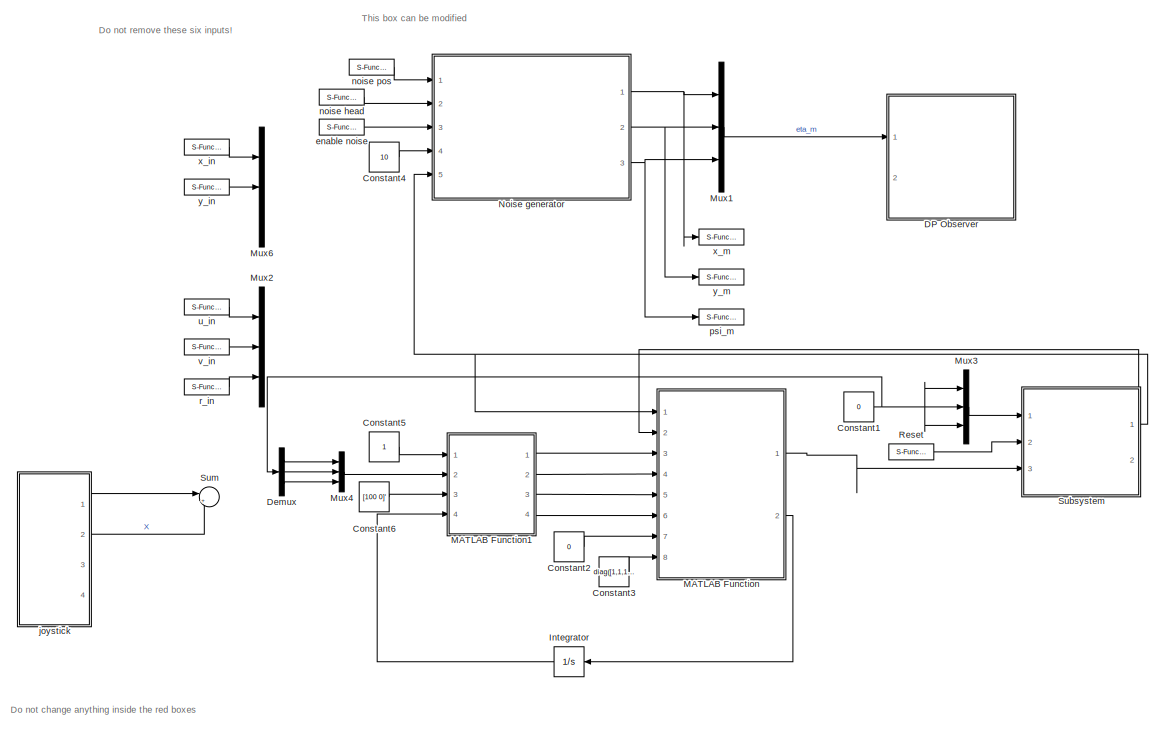
[diagram: root canvas - part 1/2, center side, full height]
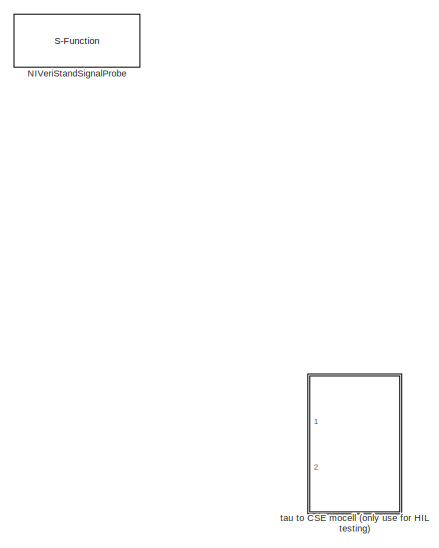
[diagram: root canvas - part 2/2, middle right region]
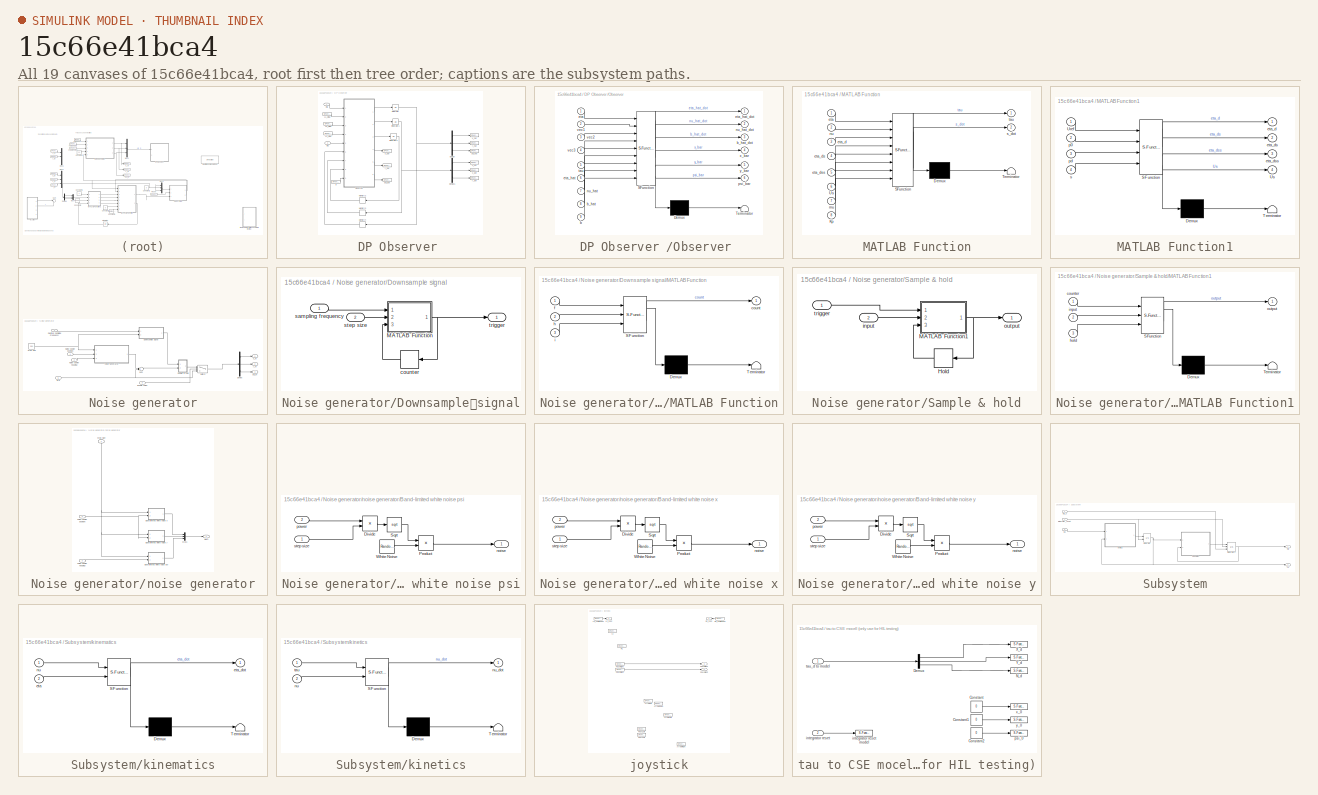
[diagram: thumbnail index - all 19 canvases of the model, root first then tree order]
MODEL slx_15c66e41bca4
KIND model
CONFIG AbsTol = auto
CONFIG FixedStep = 0.01
CONFIG MaxStep = auto
CONFIG MinStep = auto
CONFIG RelTol = 1e-3
CONFIG SampleTimeConstraint = Unconstrained
CONFIG Solver = ode4
CONFIG SolverMode = Auto
CONFIG SolverName = ode4
CONFIG StartTime = 0.0
CONFIG StopTime = inf
BLOCK [Constant] Constant1
  Value = 0
BLOCK [Constant] Constant2
  Value = 0
BLOCK [Constant] Constant3
  Value = diag([1,1,1])
BLOCK [Constant] Constant4
  Value = 10
BLOCK [Constant] Constant5
BLOCK [Constant] Constant6
  Value = [100 0]'
BLOCK [SubSystem] DP Observer 
  Ports = [2]
  RequestExecContextInheritance = off
BLOCK [Demux] DP Observer /Demux
  DisplayOption = bar
  Outputs = 3
  Ports = [1, 3]
BLOCK [Demux] DP Observer /Demux1
  DisplayOption = bar
  Outputs = 3
  Ports = [1, 3]
BLOCK [Integrator] DP Observer /Integrator
  Ports = [1, 1]
BLOCK [Integrator] DP Observer /Integrator1
  Ports = [1, 1]
BLOCK [Integrator] DP Observer /Integrator2
  Ports = [1, 1]
BLOCK [S-Function] DP Observer /L1_diag
  CopyFcn = NIVeriStand_MDL_functions('', 'IO_copy');
  DeleteFcn = NIVeriStand_MDL_functions('', 'IO_delete');
  FunctionName = NIVeriStandIO
  MoveFcn = set_param(gcb, 'Mask', 'on');
  Parameters = width dtype portnum stime stype btype
  Ports = [0, 1]
  Priority = 1
BLOCK [S-Function] DP Observer /L2_diag 
  CopyFcn = NIVeriStand_MDL_functions('', 'IO_copy');
  DeleteFcn = NIVeriStand_MDL_functions('', 'IO_delete');
  FunctionName = NIVeriStandIO
  MoveFcn = set_param(gcb, 'Mask', 'on');
  Parameters = width dtype portnum stime stype btype
  Ports = [0, 1]
  Priority = 2
BLOCK [S-Function] DP Observer /L3_diag
  CopyFcn = NIVeriStand_MDL_functions('', 'IO_copy');
  DeleteFcn = NIVeriStand_MDL_functions('', 'IO_delete');
  FunctionName = NIVeriStandIO
  MoveFcn = set_param(gcb, 'Mask', 'on');
  Parameters = width dtype portnum stime stype btype
  Ports = [0, 1]
  Priority = 3
BLOCK [Memory] DP Observer /Memory2
  X0 = [0;0;0]
BLOCK [Memory] DP Observer /Memory3
  X0 = [0;0;0]
BLOCK [Memory] DP Observer /Memory4
  X0 = [0;0;0]
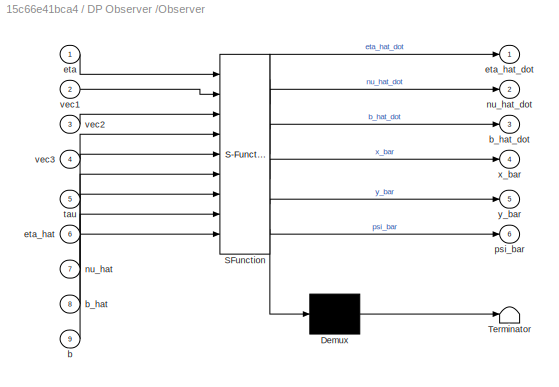
BLOCK [SubSystem] DP Observer /Observer 
  ErrorFcn = Stateflow.Translate.translate
  PermitHierarchicalResolution = ExplicitOnly
  Ports = [9, 6]
  RequestExecContextInheritance = off
  SFBlockType = MATLAB Function
  TreatAsAtomicUnit = on
BLOCK [Demux] DP Observer /Observer / Demux 
  Outputs = 1
  Ports = [1, 1]
BLOCK [S-Function] DP Observer /Observer / SFunction 
  EnableBusSupport = on
  FunctionName = sf_sfun
  PortCounts = [9 7]
  Ports = [9, 7]
  Tag = Stateflow S-Function ctrl_student_HIL_caseD 7
BLOCK [Terminator] DP Observer /Observer / Terminator 
BLOCK [Inport] DP Observer /Observer /b
  IconDisplay = Port number
  Port = 9
BLOCK [Inport] DP Observer /Observer /b_hat
  IconDisplay = Port number
  Port = 8
BLOCK [Outport] DP Observer /Observer /b_hat_dot
  IconDisplay = Port number
  Port = 3
BLOCK [Inport] DP Observer /Observer /eta
  IconDisplay = Port number
BLOCK [Inport] DP Observer /Observer /eta_hat
  IconDisplay = Port number
  Port = 6
BLOCK [Outport] DP Observer /Observer /eta_hat_dot
  IconDisplay = Port number
BLOCK [Inport] DP Observer /Observer /nu_hat
  IconDisplay = Port number
  Port = 7
BLOCK [Outport] DP Observer /Observer /nu_hat_dot
  IconDisplay = Port number
  Port = 2
BLOCK [Outport] DP Observer /Observer /psi_bar
  IconDisplay = Port number
  Port = 6
BLOCK [Inport] DP Observer /Observer /tau
  IconDisplay = Port number
  Port = 5
BLOCK [Inport] DP Observer /Observer /vec1
  IconDisplay = Port number
  Port = 2
BLOCK [Inport] DP Observer /Observer /vec2
  IconDisplay = Port number
  Port = 3
BLOCK [Inport] DP Observer /Observer /vec3
  IconDisplay = Port number
  Port = 4
BLOCK [Outport] DP Observer /Observer /x_bar
  IconDisplay = Port number
  Port = 4
BLOCK [Outport] DP Observer /Observer /y_bar
  IconDisplay = Port number
  Port = 5
BLOCK [S-Function] DP Observer /b
  CopyFcn = NIVeriStand_MDL_functions('', 'IO_copy');
  DeleteFcn = NIVeriStand_MDL_functions('', 'IO_delete');
  FunctionName = NIVeriStandIO
  MoveFcn = set_param(gcb, 'Mask', 'on');
  Parameters = width dtype portnum stime stype btype
  Ports = [0, 1]
  Priority = 4
BLOCK [Inport] DP Observer /eta 
  IconDisplay = Port number
BLOCK [S-Function] DP Observer /psi_bar
  CopyFcn = NIVeriStand_MDL_functions('', 'IO_copy');
  DeleteFcn = NIVeriStand_MDL_functions('', 'IO_delete');
  FunctionName = NIVeriStandIO
  MoveFcn = set_param(gcb, 'Mask', 'on');
  Parameters = width dtype portnum stime stype btype
  Ports = [1]
  Priority = 8
BLOCK [S-Function] DP Observer /psi_hat
  CopyFcn = NIVeriStand_MDL_functions('', 'IO_copy');
  DeleteFcn = NIVeriStand_MDL_functions('', 'IO_delete');
  FunctionName = NIVeriStandIO
  MoveFcn = set_param(gcb, 'Mask', 'on');
  Parameters = width dtype portnum stime stype btype
  Ports = [1]
  Priority = 2
BLOCK [S-Function] DP Observer /r_dot
  CopyFcn = NIVeriStand_MDL_functions('', 'IO_copy');
  DeleteFcn = NIVeriStand_MDL_functions('', 'IO_delete');
  FunctionName = NIVeriStandIO
  MoveFcn = set_param(gcb, 'Mask', 'on');
  Parameters = width dtype portnum stime stype btype
  Ports = [1]
  Priority = 4
BLOCK [Inport] DP Observer /tau 
  IconDisplay = Port number
  Port = 2
BLOCK [S-Function] DP Observer /u_dot
  CopyFcn = NIVeriStand_MDL_functions('', 'IO_copy');
  DeleteFcn = NIVeriStand_MDL_functions('', 'IO_delete');
  FunctionName = NIVeriStandIO
  MoveFcn = set_param(gcb, 'Mask', 'on');
  Parameters = width dtype portnum stime stype btype
  Ports = [1]
  Priority = 5
BLOCK [S-Function] DP Observer /v_dot
  CopyFcn = NIVeriStand_MDL_functions('', 'IO_copy');
  DeleteFcn = NIVeriStand_MDL_functions('', 'IO_delete');
  FunctionName = NIVeriStandIO
  MoveFcn = set_param(gcb, 'Mask', 'on');
  Parameters = width dtype portnum stime stype btype
  Ports = [1]
  Priority = 6
BLOCK [S-Function] DP Observer /x_bar
  CopyFcn = NIVeriStand_MDL_functions('', 'IO_copy');
  DeleteFcn = NIVeriStand_MDL_functions('', 'IO_delete');
  FunctionName = NIVeriStandIO
  MoveFcn = set_param(gcb, 'Mask', 'on');
  Parameters = width dtype portnum stime stype btype
  Ports = [1]
  Priority = 9
BLOCK [S-Function] DP Observer /x_hat
  CopyFcn = NIVeriStand_MDL_functions('', 'IO_copy');
  DeleteFcn = NIVeriStand_MDL_functions('', 'IO_delete');
  FunctionName = NIVeriStandIO
  MoveFcn = set_param(gcb, 'Mask', 'on');
  Parameters = width dtype portnum stime stype btype
  Ports = [1]
  Priority = 1
BLOCK [S-Function] DP Observer /y_bar
  CopyFcn = NIVeriStand_MDL_functions('', 'IO_copy');
  DeleteFcn = NIVeriStand_MDL_functions('', 'IO_delete');
  FunctionName = NIVeriStandIO
  MoveFcn = set_param(gcb, 'Mask', 'on');
  Parameters = width dtype portnum stime stype btype
  Ports = [1]
  Priority = 7
BLOCK [S-Function] DP Observer /y_hat
  CopyFcn = NIVeriStand_MDL_functions('', 'IO_copy');
  DeleteFcn = NIVeriStand_MDL_functions('', 'IO_delete');
  FunctionName = NIVeriStandIO
  MoveFcn = set_param(gcb, 'Mask', 'on');
  Parameters = width dtype portnum stime stype btype
  Ports = [1]
  Priority = 3
BLOCK [Demux] Demux
  DisplayOption = bar
  Outputs = 3
  Ports = [1, 3]
BLOCK [Integrator] Integrator
  Ports = [1, 1]
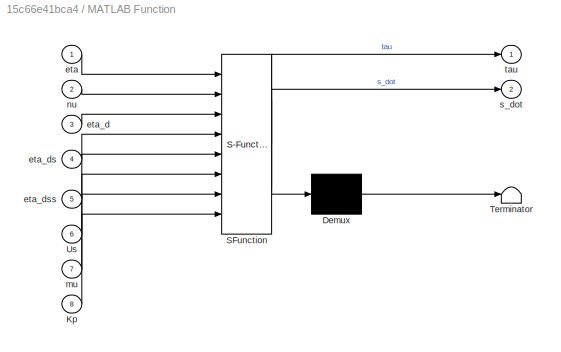
BLOCK [SubSystem] MATLAB Function
  ErrorFcn = Stateflow.Translate.translate
  PermitHierarchicalResolution = ExplicitOnly
  Ports = [8, 2]
  RequestExecContextInheritance = off
  SFBlockType = MATLAB Function
  TreatAsAtomicUnit = on
BLOCK [Demux] MATLAB Function/ Demux 
  Outputs = 1
  Ports = [1, 1]
BLOCK [S-Function] MATLAB Function/ SFunction 
  FunctionName = sf_sfun
  PortCounts = [8 3]
  Ports = [8, 3]
  Tag = Stateflow S-Function ctrl_student_HIL_caseD 2
BLOCK [Terminator] MATLAB Function/ Terminator 
BLOCK [Inport] MATLAB Function/Kp
  IconDisplay = Port number
  Port = 8
BLOCK [Inport] MATLAB Function/Us
  IconDisplay = Port number
  Port = 6
BLOCK [Inport] MATLAB Function/eta
  IconDisplay = Port number
BLOCK [Inport] MATLAB Function/eta_d
  IconDisplay = Port number
  Port = 3
BLOCK [Inport] MATLAB Function/eta_ds
  IconDisplay = Port number
  Port = 4
BLOCK [Inport] MATLAB Function/eta_dss
  IconDisplay = Port number
  Port = 5
BLOCK [Inport] MATLAB Function/mu
  IconDisplay = Port number
  Port = 7
BLOCK [Inport] MATLAB Function/nu
  IconDisplay = Port number
  Port = 2
BLOCK [Outport] MATLAB Function/s_dot
  IconDisplay = Port number
  Port = 2
BLOCK [Outport] MATLAB Function/tau
  IconDisplay = Port number
BLOCK [SubSystem] MATLAB Function1
  ErrorFcn = Stateflow.Translate.translate
  PermitHierarchicalResolution = ExplicitOnly
  Ports = [4, 4]
  RequestExecContextInheritance = off
  SFBlockType = MATLAB Function
  TreatAsAtomicUnit = on
BLOCK [Demux] MATLAB Function1/ Demux 
  Outputs = 1
  Ports = [1, 1]
BLOCK [S-Function] MATLAB Function1/ SFunction 
  FunctionName = sf_sfun
  PortCounts = [4 5]
  Ports = [4, 5]
  Tag = Stateflow S-Function ctrl_student_HIL_caseD 6
BLOCK [Terminator] MATLAB Function1/ Terminator 
BLOCK [Inport] MATLAB Function1/Uref
  IconDisplay = Port number
BLOCK [Outport] MATLAB Function1/Us
  IconDisplay = Port number
  Port = 4
BLOCK [Outport] MATLAB Function1/eta_d
  IconDisplay = Port number
BLOCK [Outport] MATLAB Function1/eta_ds
  IconDisplay = Port number
  Port = 2
BLOCK [Outport] MATLAB Function1/eta_dss
  IconDisplay = Port number
  Port = 3
BLOCK [Inport] MATLAB Function1/p0
  IconDisplay = Port number
  Port = 2
BLOCK [Inport] MATLAB Function1/pd
  IconDisplay = Port number
  Port = 3
BLOCK [Inport] MATLAB Function1/s
  IconDisplay = Port number
  Port = 4
BLOCK [Mux] Mux1
  DisplayOption = bar
  Inputs = 3
  Ports = [3, 1]
BLOCK [Mux] Mux2
  DisplayOption = bar
  Inputs = 3
  Ports = [3, 1]
BLOCK [Mux] Mux3
  DisplayOption = bar
  Inputs = 3
  Ports = [3, 1]
BLOCK [Mux] Mux4
  DisplayOption = bar
  Inputs = 3
  Ports = [3, 1]
BLOCK [Mux] Mux6
  DisplayOption = bar
  Inputs = 3
  Ports = [3, 1]
BLOCK [S-Function] NIVeriStandSignalProbe
  FunctionName = NIVeriStandSignalProbe
  Parameters = 1
  Ports = []
BLOCK [SubSystem] Noise generator
  Ports = [5, 3]
  RequestExecContextInheritance = off
BLOCK [Demux] Noise generator/Demux
  DisplayOption = bar
  Outputs = 3
  Ports = [1, 3]
BLOCK [Inport] Noise generator/Desiired Sampling Frequency
  IconDisplay = Port number
  Port = 4
BLOCK [SubSystem] Noise generator/Downsample	signal
  Ports = [2, 1]
  RequestExecContextInheritance = off
BLOCK [SubSystem] Noise generator/Downsample	signal/MATLAB Function
  ErrorFcn = Stateflow.Translate.translate
  PermitHierarchicalResolution = ExplicitOnly
  Ports = [3, 1]
  RequestExecContextInheritance = off
  SFBlockType = MATLAB Function
  TreatAsAtomicUnit = on
BLOCK [Demux] Noise generator/Downsample	signal/MATLAB Function/ Demux 
  Outputs = 1
  Ports = [1, 1]
BLOCK [S-Function] Noise generator/Downsample	signal/MATLAB Function/ SFunction 
  EnableBusSupport = on
  FunctionName = sf_sfun
  PortCounts = [3 2]
  Ports = [3, 2]
  Tag = Stateflow S-Function ctrl_student_HIL_caseD 3
BLOCK [Terminator] Noise generator/Downsample	signal/MATLAB Function/ Terminator 
BLOCK [Outport] Noise generator/Downsample	signal/MATLAB Function/count
  IconDisplay = Port number
BLOCK [Inport] Noise generator/Downsample	signal/MATLAB Function/f
  IconDisplay = Port number
BLOCK [Inport] Noise generator/Downsample	signal/MATLAB Function/h
  IconDisplay = Port number
  Port = 2
BLOCK [Inport] Noise generator/Downsample	signal/MATLAB Function/i
  IconDisplay = Port number
  Port = 3
BLOCK [Memory] Noise generator/Downsample	signal/counter
BLOCK [Inport] Noise generator/Downsample	signal/sampling frequency
  IconDisplay = Port number
BLOCK [Inport] Noise generator/Downsample	signal/step size
  IconDisplay = Port number
  Port = 2
BLOCK [Outport] Noise generator/Downsample	signal/trigger
  IconDisplay = Port number
BLOCK [Inport] Noise generator/Enable noise
  IconDisplay = Port number
  Port = 3
BLOCK [Inport] Noise generator/Noise power heading
  IconDisplay = Port number
  Port = 2
BLOCK [Inport] Noise generator/Noise power position
  IconDisplay = Port number
BLOCK [SubSystem] Noise generator/Sample & hold
  Ports = [2, 1]
  RequestExecContextInheritance = off
BLOCK [Memory] Noise generator/Sample & hold/Hold
BLOCK [SubSystem] Noise generator/Sample & hold/MATLAB Function1
  ErrorFcn = Stateflow.Translate.translate
  PermitHierarchicalResolution = ExplicitOnly
  Ports = [3, 1]
  RequestExecContextInheritance = off
  SFBlockType = MATLAB Function
  TreatAsAtomicUnit = on
BLOCK [Demux] Noise generator/Sample & hold/MATLAB Function1/ Demux 
  Outputs = 1
  Ports = [1, 1]
BLOCK [S-Function] Noise generator/Sample & hold/MATLAB Function1/ SFunction 
  EnableBusSupport = on
  FunctionName = sf_sfun
  PortCounts = [3 2]
  Ports = [3, 2]
  Tag = Stateflow S-Function ctrl_student_HIL_caseD 5
BLOCK [Terminator] Noise generator/Sample & hold/MATLAB Function1/ Terminator 
BLOCK [Inport] Noise generator/Sample & hold/MATLAB Function1/counter
  IconDisplay = Port number
BLOCK [Inport] Noise generator/Sample & hold/MATLAB Function1/hold
  IconDisplay = Port number
  Port = 3
BLOCK [Inport] Noise generator/Sample & hold/MATLAB Function1/input
  IconDisplay = Port number
  Port = 2
BLOCK [Outport] Noise generator/Sample & hold/MATLAB Function1/output
  IconDisplay = Port number
BLOCK [Inport] Noise generator/Sample & hold/input
  IconDisplay = Port number
  Port = 2
BLOCK [Outport] Noise generator/Sample & hold/output
  IconDisplay = Port number
BLOCK [Inport] Noise generator/Sample & hold/trigger
  IconDisplay = Port number
BLOCK [Constant] Noise generator/Step size
  Value = 0.01
BLOCK [Sum] Noise generator/Sum
  InputSameDT = off
  OutDataTypeStr = Inherit: Inherit via internal rule
  Ports = [2, 1]
  SaturateOnIntegerOverflow = off
BLOCK [Switch] Noise generator/Switch
  Criteria = u2 ~= 0
  InputSameDT = off
  SaturateOnIntegerOverflow = off
BLOCK [Inport] Noise generator/eta
  IconDisplay = Port number
  Port = 5
BLOCK [SubSystem] Noise generator/noise generator
  Ports = [3, 1]
  RequestExecContextInheritance = off
BLOCK [SubSystem] Noise generator/noise generator/Band-limited white noise psi
  Ports = [2, 1]
  RequestExecContextInheritance = off
BLOCK [Product] Noise generator/noise generator/Band-limited white noise psi/Divide
  InputSameDT = off
  Inputs = */
  OutDataTypeStr = Inherit: Inherit via internal rule
  Ports = [2, 1]
  RndMeth = Floor
  SaturateOnIntegerOverflow = off
BLOCK [Product] Noise generator/noise generator/Band-limited white noise psi/Product
  InputSameDT = off
  OutDataTypeStr = Inherit: Inherit via internal rule
  Ports = [2, 1]
  RndMeth = Floor
  SaturateOnIntegerOverflow = off
BLOCK [Sqrt] Noise generator/noise generator/Band-limited white noise psi/Sqrt
BLOCK [RandomNumber] Noise generator/noise generator/Band-limited white noise psi/White Noise
  DisableCoverage = on
  Seed = 9025
BLOCK [Outport] Noise generator/noise generator/Band-limited white noise psi/noise
  IconDisplay = Port number
BLOCK [Inport] Noise generator/noise generator/Band-limited white noise psi/power
  IconDisplay = Port number
  Port = 2
BLOCK [Inport] Noise generator/noise generator/Band-limited white noise psi/step size
  IconDisplay = Port number
BLOCK [SubSystem] Noise generator/noise generator/Band-limited white noise x
  Ports = [2, 1]
  RequestExecContextInheritance = off
BLOCK [Product] Noise generator/noise generator/Band-limited white noise x/Divide
  InputSameDT = off
  Inputs = */
  OutDataTypeStr = Inherit: Inherit via internal rule
  Ports = [2, 1]
  RndMeth = Floor
  SaturateOnIntegerOverflow = off
BLOCK [Product] Noise generator/noise generator/Band-limited white noise x/Product
  InputSameDT = off
  OutDataTypeStr = Inherit: Inherit via internal rule
  Ports = [2, 1]
  RndMeth = Floor
  SaturateOnIntegerOverflow = off
BLOCK [Sqrt] Noise generator/noise generator/Band-limited white noise x/Sqrt
BLOCK [RandomNumber] Noise generator/noise generator/Band-limited white noise x/White Noise
  DisableCoverage = on
  Seed = 9024
BLOCK [Outport] Noise generator/noise generator/Band-limited white noise x/noise
  IconDisplay = Port number
BLOCK [Inport] Noise generator/noise generator/Band-limited white noise x/power
  IconDisplay = Port number
  Port = 2
BLOCK [Inport] Noise generator/noise generator/Band-limited white noise x/step size
  IconDisplay = Port number
BLOCK [SubSystem] Noise generator/noise generator/Band-limited white noise y
  Ports = [2, 1]
  RequestExecContextInheritance = off
BLOCK [Product] Noise generator/noise generator/Band-limited white noise y/Divide
  InputSameDT = off
  Inputs = */
  OutDataTypeStr = Inherit: Inherit via internal rule
  Ports = [2, 1]
  RndMeth = Floor
  SaturateOnIntegerOverflow = off
BLOCK [Product] Noise generator/noise generator/Band-limited white noise y/Product
  InputSameDT = off
  OutDataTypeStr = Inherit: Inherit via internal rule
  Ports = [2, 1]
  RndMeth = Floor
  SaturateOnIntegerOverflow = off
BLOCK [Sqrt] Noise generator/noise generator/Band-limited white noise y/Sqrt
BLOCK [RandomNumber] Noise generator/noise generator/Band-limited white noise y/White Noise
  DisableCoverage = on
  Seed = 123
BLOCK [Outport] Noise generator/noise generator/Band-limited white noise y/noise
  IconDisplay = Port number
BLOCK [Inport] Noise generator/noise generator/Band-limited white noise y/power
  IconDisplay = Port number
  Port = 2
BLOCK [Inport] Noise generator/noise generator/Band-limited white noise y/step size
  IconDisplay = Port number
BLOCK [Mux] Noise generator/noise generator/Mux1
  DisplayOption = bar
  Inputs = 3
  Ports = [3, 1]
BLOCK [Outport] Noise generator/noise generator/Out1
  IconDisplay = Port number
BLOCK [Inport] Noise generator/noise generator/noise power heading
  IconDisplay = Port number
  Port = 3
BLOCK [Inport] Noise generator/noise generator/noise power position
  IconDisplay = Port number
  Port = 2
BLOCK [Inport] Noise generator/noise generator/step size
  IconDisplay = Port number
BLOCK [Outport] Noise generator/psi_m
  IconDisplay = Port number
  Port = 3
BLOCK [Outport] Noise generator/x_m
  IconDisplay = Port number
BLOCK [Outport] Noise generator/y_m
  IconDisplay = Port number
  Port = 2
BLOCK [S-Function] Reset
  CopyFcn = NIVeriStand_MDL_functions('', 'IO_copy');
  DeleteFcn = NIVeriStand_MDL_functions('', 'IO_delete');
  FunctionName = NIVeriStandIO
  MoveFcn = set_param(gcb, 'Mask', 'on');
  Parameters = width dtype portnum stime stype btype
  Ports = [0, 1]
  Priority = 9
BLOCK [SubSystem] Subsystem
  Ports = [3, 2]
  RequestExecContextInheritance = off
BLOCK [Integrator] Subsystem/Integrator
  ExternalReset = rising
  InitialCondition = [0 0 0]'
  Ports = [2, 1]
BLOCK [Integrator] Subsystem/Integrator1
  ExternalReset = rising
  InitialCondition = [0 0 0]'
  InitialConditionSource = external
  Ports = [3, 1]
BLOCK [Outport] Subsystem/eta
  IconDisplay = Port number
BLOCK [Inport] Subsystem/eta_0
  IconDisplay = Port number
BLOCK [Inport] Subsystem/integrator_reset
  IconDisplay = Port number
  Port = 2
BLOCK [SubSystem] Subsystem/kinematics
  ErrorFcn = Stateflow.Translate.translate
  PermitHierarchicalResolution = ExplicitOnly
  Ports = [2, 1]
  RequestExecContextInheritance = off
  SFBlockType = MATLAB Function
  TreatAsAtomicUnit = on
BLOCK [Demux] Subsystem/kinematics/ Demux 
  Outputs = 1
  Ports = [1, 1]
BLOCK [S-Function] Subsystem/kinematics/ SFunction 
  EnableBusSupport = on
  FunctionName = sf_sfun
  PortCounts = [2 2]
  Ports = [2, 2]
  Tag = Stateflow S-Function ctrl_student_HIL_caseD 1
BLOCK [Terminator] Subsystem/kinematics/ Terminator 
BLOCK [Inport] Subsystem/kinematics/eta
  IconDisplay = Port number
  Port = 2
BLOCK [Outport] Subsystem/kinematics/eta_dot
  IconDisplay = Port number
BLOCK [Inport] Subsystem/kinematics/nu
  IconDisplay = Port number
BLOCK [SubSystem] Subsystem/kinetics
  ErrorFcn = Stateflow.Translate.translate
  PermitHierarchicalResolution = ExplicitOnly
  Ports = [2, 1]
  RequestExecContextInheritance = off
  SFBlockType = MATLAB Function
  TreatAsAtomicUnit = on
BLOCK [Demux] Subsystem/kinetics/ Demux 
  Outputs = 1
  Ports = [1, 1]
BLOCK [S-Function] Subsystem/kinetics/ SFunction 
  EnableBusSupport = on
  FunctionName = sf_sfun
  PortCounts = [2 2]
  Ports = [2, 2]
  Tag = Stateflow S-Function ctrl_student_HIL_caseD 4
BLOCK [Terminator] Subsystem/kinetics/ Terminator 
BLOCK [Inport] Subsystem/kinetics/nu
  IconDisplay = Port number
  Port = 2
BLOCK [Outport] Subsystem/kinetics/nu_dot
  IconDisplay = Port number
BLOCK [Inport] Subsystem/kinetics/tau
  IconDisplay = Port number
BLOCK [Outport] Subsystem/nu
  IconDisplay = Port number
  Port = 2
BLOCK [Inport] Subsystem/tau
  IconDisplay = Port number
  Port = 3
BLOCK [Sum] Sum
  IconShape = round
  InputSameDT = off
  Inputs = |+-
  OutDataTypeStr = Inherit: Inherit via internal rule
  Ports = [2, 1]
  SaturateOnIntegerOverflow = off
BLOCK [S-Function] enable noise
  CopyFcn = NIVeriStand_MDL_functions('', 'IO_copy');
  DeleteFcn = NIVeriStand_MDL_functions('', 'IO_delete');
  FunctionName = NIVeriStandIO
  MoveFcn = set_param(gcb, 'Mask', 'on');
  Parameters = width dtype portnum stime stype btype
  Ports = [0, 1]
  Priority = 6
BLOCK [SubSystem] joystick
  Ports = [0, 4]
  RequestExecContextInheritance = off
BLOCK [S-Function] joystick/ArrowDown
  CopyFcn = NIVeriStand_MDL_functions('', 'IO_copy');
  DeleteFcn = NIVeriStand_MDL_functions('', 'IO_delete');
  FunctionName = NIVeriStandIO
  MoveFcn = set_param(gcb, 'Mask', 'on');
  Parameters = width dtype portnum stime stype btype
  Ports = [0, 1]
  Priority = 9
BLOCK [S-Function] joystick/ArrowLeft
  CopyFcn = NIVeriStand_MDL_functions('', 'IO_copy');
  DeleteFcn = NIVeriStand_MDL_functions('', 'IO_delete');
  FunctionName = NIVeriStandIO
  MoveFcn = set_param(gcb, 'Mask', 'on');
  Parameters = width dtype portnum stime stype btype
  Ports = [0, 1]
  Priority = 11
BLOCK [S-Function] joystick/ArrowRight
  CopyFcn = NIVeriStand_MDL_functions('', 'IO_copy');
  DeleteFcn = NIVeriStand_MDL_functions('', 'IO_delete');
  FunctionName = NIVeriStandIO
  MoveFcn = set_param(gcb, 'Mask', 'on');
  Parameters = width dtype portnum stime stype btype
  Ports = [0, 1]
  Priority = 12
BLOCK [S-Function] joystick/ArrowUp
  CopyFcn = NIVeriStand_MDL_functions('', 'IO_copy');
  DeleteFcn = NIVeriStand_MDL_functions('', 'IO_delete');
  FunctionName = NIVeriStandIO
  MoveFcn = set_param(gcb, 'Mask', 'on');
  Parameters = width dtype portnum stime stype btype
  Ports = [0, 1]
  Priority = 10
BLOCK [S-Function] joystick/L1
  CopyFcn = NIVeriStand_MDL_functions('', 'IO_copy');
  DeleteFcn = NIVeriStand_MDL_functions('', 'IO_delete');
  FunctionName = NIVeriStandIO
  MoveFcn = set_param(gcb, 'Mask', 'on');
  Parameters = width dtype portnum stime stype btype
  Ports = [0, 1]
  Priority = 7
BLOCK [Outport] joystick/L2_cont
  IconDisplay = Port number
BLOCK [S-Function] joystick/L2_continuous
  CopyFcn = NIVeriStand_MDL_functions('', 'IO_copy');
  DeleteFcn = NIVeriStand_MDL_functions('', 'IO_delete');
  FunctionName = NIVeriStandIO
  MoveFcn = set_param(gcb, 'Mask', 'on');
  Parameters = width dtype portnum stime stype btype
  Ports = [0, 1]
  Priority = 1
BLOCK [Outport] joystick/PosX Right
  IconDisplay = Port number
  Port = 3
BLOCK [S-Function] joystick/PosXLeft
  CopyFcn = NIVeriStand_MDL_functions('', 'IO_copy');
  DeleteFcn = NIVeriStand_MDL_functions('', 'IO_delete');
  FunctionName = NIVeriStandIO
  MoveFcn = set_param(gcb, 'Mask', 'on');
  Parameters = width dtype portnum stime stype btype
  Ports = [0, 1]
  Priority = 5
BLOCK [S-Function] joystick/PosXRight
  CopyFcn = NIVeriStand_MDL_functions('', 'IO_copy');
  DeleteFcn = NIVeriStand_MDL_functions('', 'IO_delete');
  FunctionName = NIVeriStandIO
  MoveFcn = set_param(gcb, 'Mask', 'on');
  Parameters = width dtype portnum stime stype btype
  Ports = [0, 1]
  Priority = 2
BLOCK [Outport] joystick/PosY Right
  IconDisplay = Port number
  Port = 4
BLOCK [S-Function] joystick/PosYLeft
  CopyFcn = NIVeriStand_MDL_functions('', 'IO_copy');
  DeleteFcn = NIVeriStand_MDL_functions('', 'IO_delete');
  FunctionName = NIVeriStandIO
  MoveFcn = set_param(gcb, 'Mask', 'on');
  Parameters = width dtype portnum stime stype btype
  Ports = [0, 1]
  Priority = 6
BLOCK [S-Function] joystick/PosYRight
  CopyFcn = NIVeriStand_MDL_functions('', 'IO_copy');
  DeleteFcn = NIVeriStand_MDL_functions('', 'IO_delete');
  FunctionName = NIVeriStandIO
  MoveFcn = set_param(gcb, 'Mask', 'on');
  Parameters = width dtype portnum stime stype btype
  Ports = [0, 1]
  Priority = 3
BLOCK [S-Function] joystick/R1
  CopyFcn = NIVeriStand_MDL_functions('', 'IO_copy');
  DeleteFcn = NIVeriStand_MDL_functions('', 'IO_delete');
  FunctionName = NIVeriStandIO
  MoveFcn = set_param(gcb, 'Mask', 'on');
  Parameters = width dtype portnum stime stype btype
  Ports = [0, 1]
  Priority = 8
BLOCK [Outport] joystick/R2_cont
  IconDisplay = Port number
  Port = 2
BLOCK [S-Function] joystick/R2_continuous
  CopyFcn = NIVeriStand_MDL_functions('', 'IO_copy');
  DeleteFcn = NIVeriStand_MDL_functions('', 'IO_delete');
  FunctionName = NIVeriStandIO
  MoveFcn = set_param(gcb, 'Mask', 'on');
  Parameters = width dtype portnum stime stype btype
  Ports = [0, 1]
  Priority = 4
BLOCK [S-Function] noise head
  CopyFcn = NIVeriStand_MDL_functions('', 'IO_copy');
  DeleteFcn = NIVeriStand_MDL_functions('', 'IO_delete');
  FunctionName = NIVeriStandIO
  MoveFcn = set_param(gcb, 'Mask', 'on');
  Parameters = width dtype portnum stime stype btype
  Ports = [0, 1]
  Priority = 8
BLOCK [S-Function] noise pos
  CopyFcn = NIVeriStand_MDL_functions('', 'IO_copy');
  DeleteFcn = NIVeriStand_MDL_functions('', 'IO_delete');
  FunctionName = NIVeriStandIO
  MoveFcn = set_param(gcb, 'Mask', 'on');
  Parameters = width dtype portnum stime stype btype
  Ports = [0, 1]
  Priority = 7
BLOCK [S-Function] psi_m
  CopyFcn = NIVeriStand_MDL_functions('', 'IO_copy');
  DeleteFcn = NIVeriStand_MDL_functions('', 'IO_delete');
  FunctionName = NIVeriStandIO
  MoveFcn = set_param(gcb, 'Mask', 'on');
  Parameters = width dtype portnum stime stype btype
  Ports = [1]
  Priority = 2
BLOCK [S-Function] r_in
  CopyFcn = NIVeriStand_MDL_functions('', 'IO_copy');
  DeleteFcn = NIVeriStand_MDL_functions('', 'IO_delete');
  FunctionName = NIVeriStandIO
  MoveFcn = set_param(gcb, 'Mask', 'on');
  Parameters = width dtype portnum stime stype btype
  Ports = [0, 1]
  Priority = 3
BLOCK [SubSystem] tau to CSE mocell (only use for HIL testing)
  Ports = [2]
  RequestExecContextInheritance = off
BLOCK [Constant] tau to CSE mocell (only use for HIL testing)/Constant
  Value = 0
BLOCK [Constant] tau to CSE mocell (only use for HIL testing)/Constant1
  Value = 0
BLOCK [Constant] tau to CSE mocell (only use for HIL testing)/Constant2
  Value = 0
BLOCK [Demux] tau to CSE mocell (only use for HIL testing)/Demux
  DisplayOption = bar
  Outputs = 3
  Ports = [1, 3]
BLOCK [S-Function] tau to CSE mocell (only use for HIL testing)/N_d
  CopyFcn = NIVeriStand_MDL_functions('', 'IO_copy');
  DeleteFcn = NIVeriStand_MDL_functions('', 'IO_delete');
  FunctionName = NIVeriStandIO
  MoveFcn = set_param(gcb, 'Mask', 'on');
  Parameters = width dtype portnum stime stype btype
  Ports = [1]
  Priority = 2
BLOCK [S-Function] tau to CSE mocell (only use for HIL testing)/X_d
  CopyFcn = NIVeriStand_MDL_functions('', 'IO_copy');
  DeleteFcn = NIVeriStand_MDL_functions('', 'IO_delete');
  FunctionName = NIVeriStandIO
  MoveFcn = set_param(gcb, 'Mask', 'on');
  Parameters = width dtype portnum stime stype btype
  Ports = [1]
  Priority = 1
BLOCK [S-Function] tau to CSE mocell (only use for HIL testing)/Y_d
  CopyFcn = NIVeriStand_MDL_functions('', 'IO_copy');
  DeleteFcn = NIVeriStand_MDL_functions('', 'IO_delete');
  FunctionName = NIVeriStandIO
  MoveFcn = set_param(gcb, 'Mask', 'on');
  Parameters = width dtype portnum stime stype btype
  Ports = [1]
  Priority = 3
BLOCK [Inport] tau to CSE mocell (only use for HIL testing)/integrator reset
  IconDisplay = Port number
  Port = 2
BLOCK [S-Function] tau to CSE mocell (only use for HIL testing)/integrator reset model
  CopyFcn = NIVeriStand_MDL_functions('', 'IO_copy');
  DeleteFcn = NIVeriStand_MDL_functions('', 'IO_delete');
  FunctionName = NIVeriStandIO
  MoveFcn = set_param(gcb, 'Mask', 'on');
  Parameters = width dtype portnum stime stype btype
  Ports = [1]
  Priority = 7
BLOCK [S-Function] tau to CSE mocell (only use for HIL testing)/psi_0 
  CopyFcn = NIVeriStand_MDL_functions('', 'IO_copy');
  DeleteFcn = NIVeriStand_MDL_functions('', 'IO_delete');
  FunctionName = NIVeriStandIO
  MoveFcn = set_param(gcb, 'Mask', 'on');
  Parameters = width dtype portnum stime stype btype
  Ports = [1]
  Priority = 4
BLOCK [Inport] tau to CSE mocell (only use for HIL testing)/tau_d to model
  IconDisplay = Port number
BLOCK [S-Function] tau to CSE mocell (only use for HIL testing)/x_0
  CopyFcn = NIVeriStand_MDL_functions('', 'IO_copy');
  DeleteFcn = NIVeriStand_MDL_functions('', 'IO_delete');
  FunctionName = NIVeriStandIO
  MoveFcn = set_param(gcb, 'Mask', 'on');
  Parameters = width dtype portnum stime stype btype
  Ports = [1]
  Priority = 5
BLOCK [S-Function] tau to CSE mocell (only use for HIL testing)/y_0
  CopyFcn = NIVeriStand_MDL_functions('', 'IO_copy');
  DeleteFcn = NIVeriStand_MDL_functions('', 'IO_delete');
  FunctionName = NIVeriStandIO
  MoveFcn = set_param(gcb, 'Mask', 'on');
  Parameters = width dtype portnum stime stype btype
  Ports = [1]
  Priority = 6
BLOCK [S-Function] u_in
  CopyFcn = NIVeriStand_MDL_functions('', 'IO_copy');
  DeleteFcn = NIVeriStand_MDL_functions('', 'IO_delete');
  FunctionName = NIVeriStandIO
  MoveFcn = set_param(gcb, 'Mask', 'on');
  Parameters = width dtype portnum stime stype btype
  Ports = [0, 1]
  Priority = 4
BLOCK [S-Function] v_in
  CopyFcn = NIVeriStand_MDL_functions('', 'IO_copy');
  DeleteFcn = NIVeriStand_MDL_functions('', 'IO_delete');
  FunctionName = NIVeriStandIO
  MoveFcn = set_param(gcb, 'Mask', 'on');
  Parameters = width dtype portnum stime stype btype
  Ports = [0, 1]
  Priority = 5
BLOCK [S-Function] x_in
  CopyFcn = NIVeriStand_MDL_functions('', 'IO_copy');
  DeleteFcn = NIVeriStand_MDL_functions('', 'IO_delete');
  FunctionName = NIVeriStandIO
  MoveFcn = set_param(gcb, 'Mask', 'on');
  Parameters = width dtype portnum stime stype btype
  Ports = [0, 1]
  Priority = 2
BLOCK [S-Function] x_m
  CopyFcn = NIVeriStand_MDL_functions('', 'IO_copy');
  DeleteFcn = NIVeriStand_MDL_functions('', 'IO_delete');
  FunctionName = NIVeriStandIO
  MoveFcn = set_param(gcb, 'Mask', 'on');
  Parameters = width dtype portnum stime stype btype
  Ports = [1]
  Priority = 1
BLOCK [S-Function] y_in
  CopyFcn = NIVeriStand_MDL_functions('', 'IO_copy');
  DeleteFcn = NIVeriStand_MDL_functions('', 'IO_delete');
  FunctionName = NIVeriStandIO
  MoveFcn = set_param(gcb, 'Mask', 'on');
  Parameters = width dtype portnum stime stype btype
  Ports = [0, 1]
  Priority = 1
BLOCK [S-Function] y_m
  CopyFcn = NIVeriStand_MDL_functions('', 'IO_copy');
  DeleteFcn = NIVeriStand_MDL_functions('', 'IO_delete');
  FunctionName = NIVeriStandIO
  MoveFcn = set_param(gcb, 'Mask', 'on');
  Parameters = width dtype portnum stime stype btype
  Ports = [1]
  Priority = 3
ANNOTATION (root): This box can be modified
ANNOTATION (root): Do not change anything inside the red boxes
ANNOTATION (root): Do not remove these six inputs!
NET Constant1:1 -> Demux:1, Mux3:1, Mux3:2, Mux3:3
LINE Constant2:1 -> MATLAB Function:7
LINE Constant3:1 -> MATLAB Function:8
LINE Constant4:1 -> Noise generator:4
LINE Constant5:1 -> MATLAB Function1:1
LINE Constant6:1 -> MATLAB Function1:3
LINE DP Observer /Demux1:1 -> DP Observer /u_dot:1
LINE DP Observer /Demux1:2 -> DP Observer /v_dot:1
LINE DP Observer /Demux1:3 -> DP Observer /r_dot:1
LINE DP Observer /Demux:1 -> DP Observer /x_hat:1
LINE DP Observer /Demux:2 -> DP Observer /y_hat:1
LINE DP Observer /Demux:3 -> DP Observer /psi_hat:1
NET DP Observer /Integrator1:1 -> DP Observer /Demux1:1, DP Observer /Memory3:1
LINE DP Observer /Integrator2:1 -> DP Observer /Memory2:1
NET DP Observer /Integrator:1 -> DP Observer /Demux:1, DP Observer /Memory4:1
LINE DP Observer /L1_diag:1 -> DP Observer /Observer :2
LINE DP Observer /L2_diag :1 -> DP Observer /Observer :3
LINE DP Observer /L3_diag:1 -> DP Observer /Observer :4
LINE DP Observer /Memory2:1 -> DP Observer /Observer :8
LINE DP Observer /Memory3:1 -> DP Observer /Observer :7
LINE DP Observer /Memory4:1 -> DP Observer /Observer :6
LINE DP Observer /Observer :1 -> DP Observer /Integrator:1
LINE DP Observer /Observer :2 -> DP Observer /Integrator1:1
LINE DP Observer /Observer :3 -> DP Observer /Integrator2:1
LINE DP Observer /Observer :4 -> DP Observer /x_bar:1
LINE DP Observer /Observer :5 -> DP Observer /y_bar:1
LINE DP Observer /Observer :6 -> DP Observer /psi_bar:1
LINE DP Observer /b:1 -> DP Observer /Observer :9
LINE DP Observer /eta :1 -> DP Observer /Observer :1
LINE DP Observer /tau :1 -> DP Observer /Observer :5
LINE Demux:1 -> Mux4:1
LINE Demux:2 -> Mux4:2
LINE Demux:3 -> Mux4:3
LINE Integrator:1 -> MATLAB Function1:4
LINE MATLAB Function1:1 -> MATLAB Function:3
LINE MATLAB Function1:2 -> MATLAB Function:4
LINE MATLAB Function1:3 -> MATLAB Function:5
LINE MATLAB Function1:4 -> MATLAB Function:6
LINE MATLAB Function:1 -> Subsystem:3
LINE MATLAB Function:2 -> Integrator:1
LINE Mux1:1 -> DP Observer :1
LINE Mux3:1 -> Subsystem:1
LINE Mux4:1 -> MATLAB Function1:2
LINE Noise generator/Demux:1 -> Noise generator/x_m:1
LINE Noise generator/Demux:2 -> Noise generator/y_m:1
LINE Noise generator/Demux:3 -> Noise generator/psi_m:1
LINE Noise generator/Desiired Sampling Frequency:1 -> Noise generator/Downsample	signal:1
NET Noise generator/Downsample	signal/MATLAB Function:1 -> Noise generator/Downsample	signal/counter:1, Noise generator/Downsample	signal/trigger:1
LINE Noise generator/Downsample	signal/counter:1 -> Noise generator/Downsample	signal/MATLAB Function:3
LINE Noise generator/Downsample	signal/sampling frequency:1 -> Noise generator/Downsample	signal/MATLAB Function:1
LINE Noise generator/Downsample	signal/step size:1 -> Noise generator/Downsample	signal/MATLAB Function:2
LINE Noise generator/Downsample	signal:1 -> Noise generator/Sample & hold:1
LINE Noise generator/Enable noise:1 -> Noise generator/Switch:2
LINE Noise generator/Noise power heading:1 -> Noise generator/noise generator:3
LINE Noise generator/Noise power position:1 -> Noise generator/noise generator:2
LINE Noise generator/Sample & hold/Hold:1 -> Noise generator/Sample & hold/MATLAB Function1:3
NET Noise generator/Sample & hold/MATLAB Function1:1 -> Noise generator/Sample & hold/Hold:1, Noise generator/Sample & hold/output:1
LINE Noise generator/Sample & hold/input:1 -> Noise generator/Sample & hold/MATLAB Function1:2
LINE Noise generator/Sample & hold/trigger:1 -> Noise generator/Sample & hold/MATLAB Function1:1
LINE Noise generator/Sample & hold:1 -> Noise generator/Switch:1
NET Noise generator/Step size:1 -> Noise generator/Downsample	signal:2, Noise generator/noise generator:1
LINE Noise generator/Sum:1 -> Noise generator/Sample & hold:2
LINE Noise generator/Switch:1 -> Noise generator/Demux:1
NET Noise generator/eta:1 -> Noise generator/Sum:2, Noise generator/Switch:3
LINE Noise generator/noise generator/Band-limited white noise psi/Divide:1 -> Noise generator/noise generator/Band-limited white noise psi/Sqrt:1
LINE Noise generator/noise generator/Band-limited white noise psi/Product:1 -> Noise generator/noise generator/Band-limited white noise psi/noise:1
LINE Noise generator/noise generator/Band-limited white noise psi/Sqrt:1 -> Noise generator/noise generator/Band-limited white noise psi/Product:1
LINE Noise generator/noise generator/Band-limited white noise psi/White Noise:1 -> Noise generator/noise generator/Band-limited white noise psi/Product:2
LINE Noise generator/noise generator/Band-limited white noise psi/power:1 -> Noise generator/noise generator/Band-limited white noise psi/Divide:1
LINE Noise generator/noise generator/Band-limited white noise psi/step size:1 -> Noise generator/noise generator/Band-limited white noise psi/Divide:2
LINE Noise generator/noise generator/Band-limited white noise psi:1 -> Noise generator/noise generator/Mux1:3
LINE Noise generator/noise generator/Band-limited white noise x/Divide:1 -> Noise generator/noise generator/Band-limited white noise x/Sqrt:1
LINE Noise generator/noise generator/Band-limited white noise x/Product:1 -> Noise generator/noise generator/Band-limited white noise x/noise:1
LINE Noise generator/noise generator/Band-limited white noise x/Sqrt:1 -> Noise generator/noise generator/Band-limited white noise x/Product:1
LINE Noise generator/noise generator/Band-limited white noise x/White Noise:1 -> Noise generator/noise generator/Band-limited white noise x/Product:2
LINE Noise generator/noise generator/Band-limited white noise x/power:1 -> Noise generator/noise generator/Band-limited white noise x/Divide:1
LINE Noise generator/noise generator/Band-limited white noise x/step size:1 -> Noise generator/noise generator/Band-limited white noise x/Divide:2
LINE Noise generator/noise generator/Band-limited white noise x:1 -> Noise generator/noise generator/Mux1:1
LINE Noise generator/noise generator/Band-limited white noise y/Divide:1 -> Noise generator/noise generator/Band-limited white noise y/Sqrt:1
LINE Noise generator/noise generator/Band-limited white noise y/Product:1 -> Noise generator/noise generator/Band-limited white noise y/noise:1
LINE Noise generator/noise generator/Band-limited white noise y/Sqrt:1 -> Noise generator/noise generator/Band-limited white noise y/Product:1
LINE Noise generator/noise generator/Band-limited white noise y/White Noise:1 -> Noise generator/noise generator/Band-limited white noise y/Product:2
LINE Noise generator/noise generator/Band-limited white noise y/power:1 -> Noise generator/noise generator/Band-limited white noise y/Divide:1
LINE Noise generator/noise generator/Band-limited white noise y/step size:1 -> Noise generator/noise generator/Band-limited white noise y/Divide:2
LINE Noise generator/noise generator/Band-limited white noise y:1 -> Noise generator/noise generator/Mux1:2
LINE Noise generator/noise generator/Mux1:1 -> Noise generator/noise generator/Out1:1
LINE Noise generator/noise generator/noise power heading:1 -> Noise generator/noise generator/Band-limited white noise psi:2
NET Noise generator/noise generator/noise power position:1 -> Noise generator/noise generator/Band-limited white noise x:2, Noise generator/noise generator/Band-limited white noise y:2
NET Noise generator/noise generator/step size:1 -> Noise generator/noise generator/Band-limited white noise psi:1, Noise generator/noise generator/Band-limited white noise x:1, Noise generator/noise generator/Band-limited white noise y:1
LINE Noise generator/noise generator:1 -> Noise generator/Sum:1
NET Noise generator:1 -> Mux1:1, x_m:1
NET Noise generator:2 -> Mux1:2, y_m:1
NET Noise generator:3 -> Mux1:3, psi_m:1
LINE Reset:1 -> Subsystem:2
NET Subsystem/Integrator1:1 -> Subsystem/eta:1, Subsystem/kinematics:2
NET Subsystem/Integrator:1 -> Subsystem/kinematics:1, Subsystem/kinetics:2, Subsystem/nu:1
LINE Subsystem/eta_0:1 -> Subsystem/Integrator1:3
NET Subsystem/integrator_reset:1 -> Subsystem/Integrator1:2, Subsystem/Integrator:2
LINE Subsystem/kinematics:1 -> Subsystem/Integrator1:1
LINE Subsystem/kinetics:1 -> Subsystem/Integrator:1
LINE Subsystem/tau:1 -> Subsystem/kinetics:1
NET Subsystem:1 -> MATLAB Function:1, Noise generator:5
LINE Subsystem:2 -> MATLAB Function:2
LINE enable noise:1 -> Noise generator:3
LINE joystick/L2_continuous:1 -> joystick/L2_cont:1
LINE joystick/PosXRight:1 -> joystick/PosX Right:1
LINE joystick/PosYRight:1 -> joystick/PosY Right:1
LINE joystick/R2_continuous:1 -> joystick/R2_cont:1
LINE joystick:1 -> Sum:1
LINE joystick:2 -> Sum:2
LINE noise head:1 -> Noise generator:2
LINE noise pos:1 -> Noise generator:1
LINE r_in:1 -> Mux2:3
LINE tau to CSE mocell (only use for HIL testing)/Constant1:1 -> tau to CSE mocell (only use for HIL testing)/y_0:1
LINE tau to CSE mocell (only use for HIL testing)/Constant2:1 -> tau to CSE mocell (only use for HIL testing)/psi_0 :1
LINE tau to CSE mocell (only use for HIL testing)/Constant:1 -> tau to CSE mocell (only use for HIL testing)/x_0:1
LINE tau to CSE mocell (only use for HIL testing)/Demux:1 -> tau to CSE mocell (only use for HIL testing)/X_d:1
LINE tau to CSE mocell (only use for HIL testing)/Demux:2 -> tau to CSE mocell (only use for HIL testing)/Y_d:1
LINE tau to CSE mocell (only use for HIL testing)/Demux:3 -> tau to CSE mocell (only use for HIL testing)/N_d:1
LINE tau to CSE mocell (only use for HIL testing)/integrator reset:1 -> tau to CSE mocell (only use for HIL testing)/integrator reset model:1
LINE tau to CSE mocell (only use for HIL testing)/tau_d to model:1 -> tau to CSE mocell (only use for HIL testing)/Demux:1
LINE u_in:1 -> Mux2:1
LINE v_in:1 -> Mux2:2
LINE x_in:1 -> Mux6:1
LINE y_in:1 -> Mux6:2
note: NET lines group one-source signal fan-out (src -> all destinations, sorted); 1:1 wires keep LINE
CHART Subsystem/kinematics states=1 transitions=1
  STATE_LABEL 'eML_blk_kernel()'
  STATE_LABEL 'SCRIPT:\nfunction eta_dot = CSE1_eta_dot(nu,eta)\n\npsi = eta(3);\n\nJ = [cos(psi) -sin(psi) 0\n     sin(psi) cos(psi)  0\n     0        0         1];\n\neta_dot = J*nu;'
CHART MATLAB Function states=1 transitions=1
  STATE_LABEL 'eML_blk_kernel()'
  STATE_LABEL 'SCRIPT:\nfunction [tau, s_dot] = fcn(eta, nu, eta_d, eta_ds, eta_dss, Us, mu, Kp)\n\nx = eta(1);\ny = eta(2);\npsi = eta(3);\n\nu = nu(1);\nv = nu(2);\nr = nu(3);\n\nXu = -0.6555;  Yv = -1.33;    Nv = 0.0; \nXuu = 0.3545;  Yvv = -2.776;  Nvv = -0.2088; \nXuuu = -3.787; Yvvv = -64.91; Nvvv = 0.0;\nXv = 0.0;      Yr = -7.25;    Nr = -1.9; \nXvv = -2.443;  Yrr = -3.45;   Nrr = 0.75;\nXvvv = 0.0;    Yrrr = 0.0;    Nr...<+1037ch>'
CHART Noise generator/Downsample	signal/MATLAB Function states=1 transitions=1
  STATE_LABEL 'eML_blk_kernel()'
  STATE_LABEL 'SCRIPT:\nfunction count = fcn(f,h,i)\n%#codegen\nsampling_time = 1/f;\nif (i+1)*h >= sampling_time\n    count = 0;\nelse\n    count = i+1;\nend'
CHART Subsystem/kinetics states=1 transitions=1
  STATE_LABEL 'eML_blk_kernel()'
  STATE_LABEL 'SCRIPT:\nfunction nu_dot = CSE1_nu_dot(tau,nu)\n\nu   = nu(1);\nv   = nu(2);\nr   = nu(3);\n\ntau = [tau(1);tau(2);tau(3)];\n%% MATRICES\n\nm    = 14.79;   I_z  =  1.7600;   x_g = 0.0375;       % x_g  =  0.0460; % Table B.1\n\n\n%% Added mass\nX_ud  =     -2.0;\t\t\t\t\t\t\t\t\t\t\t% Table B.1\n\t\t\t\t\tY_vd =     -1.0;\tN_vd =    -0.0;\t\t% Table B.1 guestimate\n\t\t\t\t\tY_rd =      -0.0;\tN_rd =    -1.0;\t\t% Table B.1\n\n%% Total mass m...<+1285ch>'
CHART Noise generator/Sample & hold/MATLAB Function1 states=1 transitions=1
  STATE_LABEL 'eML_blk_kernel()'
  STATE_LABEL 'SCRIPT:\nfunction output = fcn(counter,input,hold)\n%#codegen\n\nif counter == 0\n    output = input;\nelse\n    output = hold;\nend'
CHART MATLAB Function1 states=1 transitions=1
  STATE_LABEL 'eML_blk_kernel()'
  STATE_LABEL "SCRIPT:\nfunction [eta_d,eta_ds,eta_dss,Us] = fcn(Uref,p0,pd,s)\nx1 = pd(1);\ny1 = pd(2);\nx0 = p0(1);\ny0 = p0(2);\nxd = x0 + (x1-x0)*s;\nyd = y0 + (y1-y0)*s;\nxds = x1-x0;\nyds = y1-y0;\npsid = atan2(yds,xds);\npsids = 0;\n\nxdss = 0;\nydss = 0;\npsidss = 0;\n\neta_d = [xd,yd,psid]';\neta_ds = [xds,yds,psids]';\neta_dss = [xdss,ydss,psidss]';\nUs = Uref/(sqrt((x1-x0)^2+(y1-y0)^2));"
CHART DP Observer
/Observer
 states=1 transitions=1
  STATE_LABEL 'eML_blk_kernel()'
  STATE_LABEL 'SCRIPT:\nfunction [eta_hat_dot, nu_hat_dot, b_hat_dot,  x_bar,  y_bar,    psi_bar]   = Observer(  eta, vec1, vec2, vec3, tau, eta_hat, nu_hat, b_hat, b)\n% if(first == 1)\n% eta_hat = zeros(3,1) ; \n% nu_hat = zeros(3,1); \n% b_hau = zeros(3,1)\n% first_out = 0; \n% end\nL1 = diag(vec1); \nL2 = diag(vec2); \nL3 = diag(vec3); \nM = [16.79 0 0; 0 24.79 0.5546; 0 0.5546 2.7600];\n\n\n\n% The total damping matrix fr...<+390ch>'
